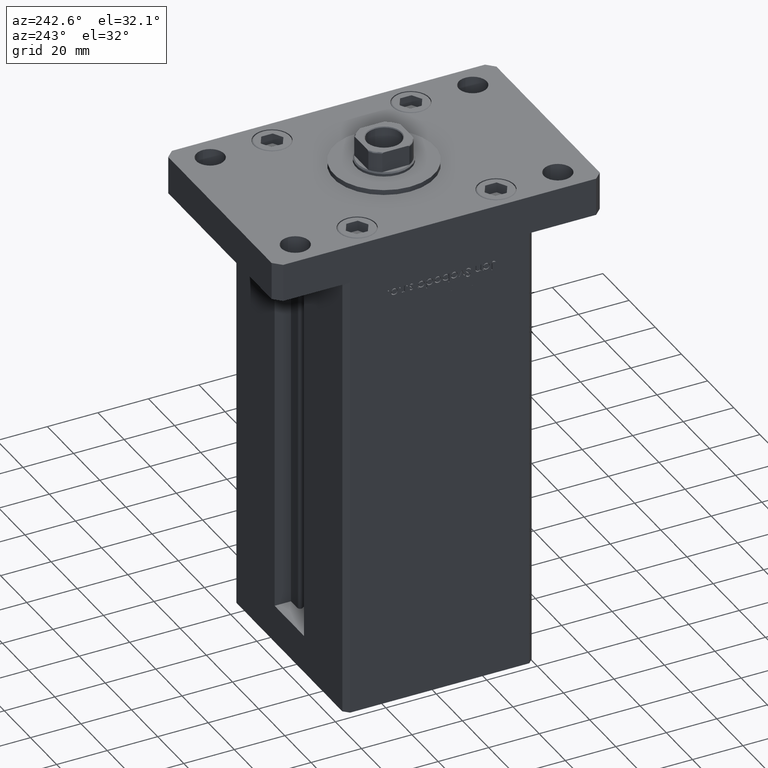
[diagram: clean part render]
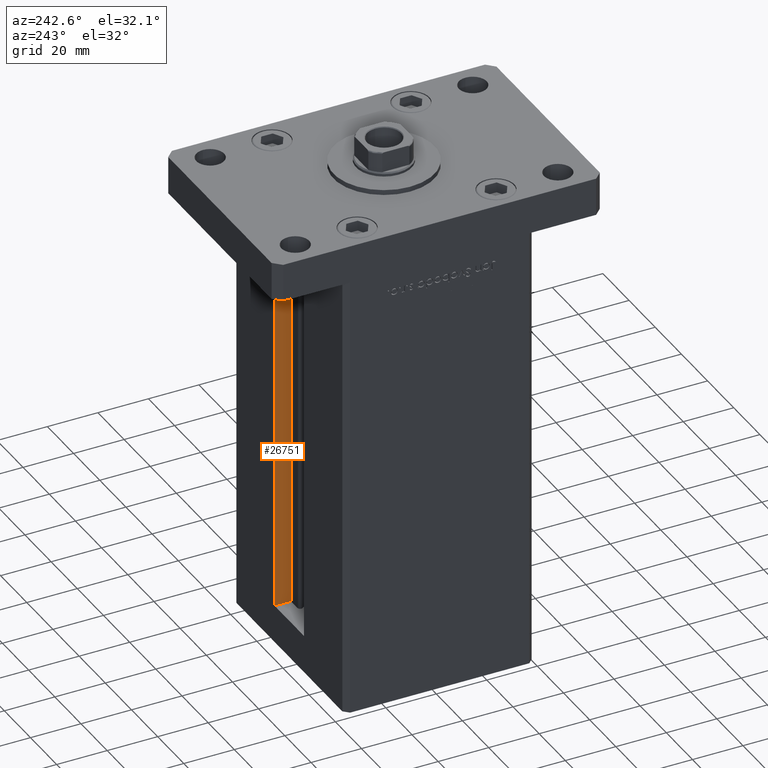
[diagram: same view with one face highlighted and labeled with its STEP entity id]
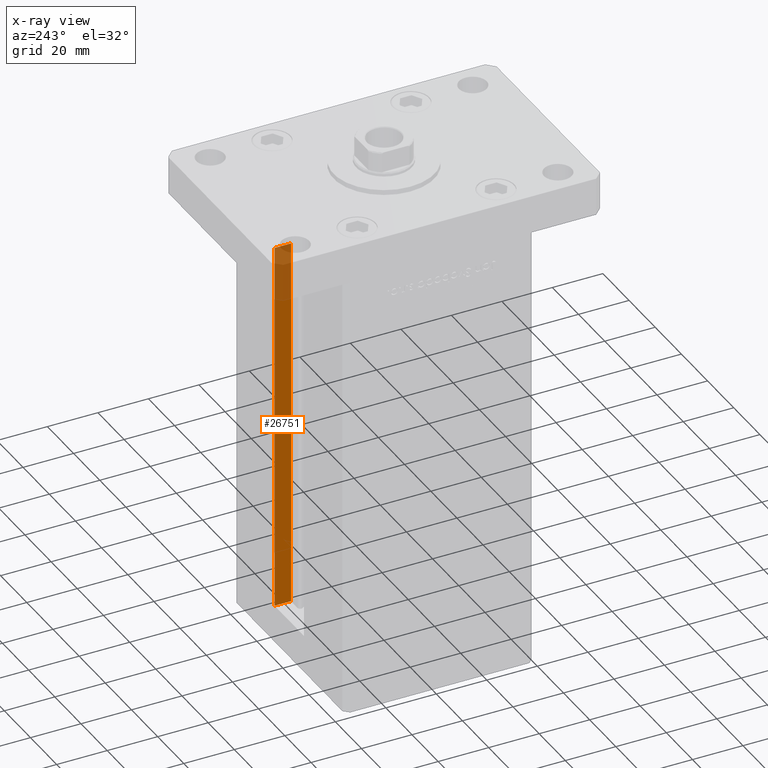
[diagram: x-ray of the same camera — body ghosted, the highlighted face saturated]
A machine part, auxiliary view. The second image highlights one B-rep face of the part: STEP entity #26751.
The next image is the same camera in x-ray: the body ghosted, the highlighted face saturated — about 15% of this face is hidden behind the body in this view.
In plain terms, the highlighted planar face has unit normal (1, 0, 0).
Its self-contained STEP definition (entity closure, byte-faithful):
#420 = CARTESIAN_POINT ( 'NONE',  ( 11.25000000000000000, 0.000000000000000000, 148.5000000000000000 ) ) ;
#1797 = DIRECTION ( 'NONE',  ( 1.000000000000000000, -0.000000000000000000, 0.000000000000000000 ) ) ;
#2194 = CARTESIAN_POINT ( 'NONE',  ( 11.25000000000000000, 30.99999999999999289, 0.000000000000000000 ) ) ;
#3140 = VERTEX_POINT ( 'NONE', #12229 ) ;
#8735 = EDGE_LOOP ( 'NONE', ( #9649, #30442, #40326, #50840 ) ) ;
#8778 = CARTESIAN_POINT ( 'NONE',  ( 11.25000000000000000, 30.99999999999999289, 0.000000000000000000 ) ) ;
#9052 = LINE ( 'NONE', #8778, #40280 ) ;
#9649 = ORIENTED_EDGE ( 'NONE', *, *, #30231, .F. ) ;
#12229 = CARTESIAN_POINT ( 'NONE',  ( 11.25000000000000000, 37.50000000000000000, 0.000000000000000000 ) ) ;
#12682 = EDGE_CURVE ( 'NONE', #13074, #18592, #21794, .T. ) ;
#12896 = DIRECTION ( 'NONE',  ( -0.000000000000000000, -1.000000000000000000, 0.000000000000000000 ) ) ;
#13074 = VERTEX_POINT ( 'NONE', #30427 ) ;
#18592 = VERTEX_POINT ( 'NONE', #29770 ) ;
#18759 = AXIS2_PLACEMENT_3D ( 'NONE', #39771, #1797, #27003 ) ;
#21794 = LINE ( 'NONE', #420, #36505 ) ;
#25569 = DIRECTION ( 'NONE',  ( 0.000000000000000000, 1.000000000000000000, 0.000000000000000000 ) ) ;
#26321 = DIRECTION ( 'NONE',  ( -0.000000000000000000, -0.000000000000000000, 1.000000000000000000 ) ) ;
#26751 = ADVANCED_FACE ( 'NONE', ( #47616 ), #31631, .F. ) ;
#27003 = DIRECTION ( 'NONE',  ( 0.000000000000000000, 0.000000000000000000, -1.000000000000000000 ) ) ;
#29770 = CARTESIAN_POINT ( 'NONE',  ( 11.25000000000000000, 30.99999999999999289, 148.5000000000000000 ) ) ;
#30231 = EDGE_CURVE ( 'NONE', #3140, #13074, #31716, .T. ) ;
#30427 = CARTESIAN_POINT ( 'NONE',  ( 11.24999999999999289, 37.50000000000000000, 148.5000000000000000 ) ) ;
#30442 = ORIENTED_EDGE ( 'NONE', *, *, #38004, .F. ) ;
#31631 = PLANE ( 'NONE',  #18759 ) ;
#31716 = LINE ( 'NONE', #39310, #44459 ) ;
#33139 = EDGE_CURVE ( 'NONE', #47190, #18592, #39346, .T. ) ;
#36505 = VECTOR ( 'NONE', #12896, 1000.000000000000000 ) ;
#38004 = EDGE_CURVE ( 'NONE', #47190, #3140, #9052, .T. ) ;
#39310 = CARTESIAN_POINT ( 'NONE',  ( 11.25000000000000000, 37.50000000000000000, 0.000000000000000000 ) ) ;
#39346 = LINE ( 'NONE', #2194, #45307 ) ;
#39771 = CARTESIAN_POINT ( 'NONE',  ( 11.25000000000000000, 30.99999999999999289, 0.000000000000000000 ) ) ;
#40280 = VECTOR ( 'NONE', #25569, 1000.000000000000000 ) ;
#40326 = ORIENTED_EDGE ( 'NONE', *, *, #33139, .T. ) ;
#44459 = VECTOR ( 'NONE', #47980, 1000.000000000000000 ) ;
#44748 = CARTESIAN_POINT ( 'NONE',  ( 11.25000000000000000, 30.99999999999999289, 0.000000000000000000 ) ) ;
#45307 = VECTOR ( 'NONE', #26321, 1000.000000000000000 ) ;
#47190 = VERTEX_POINT ( 'NONE', #44748 ) ;
#47616 = FACE_OUTER_BOUND ( 'NONE', #8735, .T. ) ;
#47980 = DIRECTION ( 'NONE',  ( -0.000000000000000000, -0.000000000000000000, 1.000000000000000000 ) ) ;
#50840 = ORIENTED_EDGE ( 'NONE', *, *, #12682, .F. ) ;